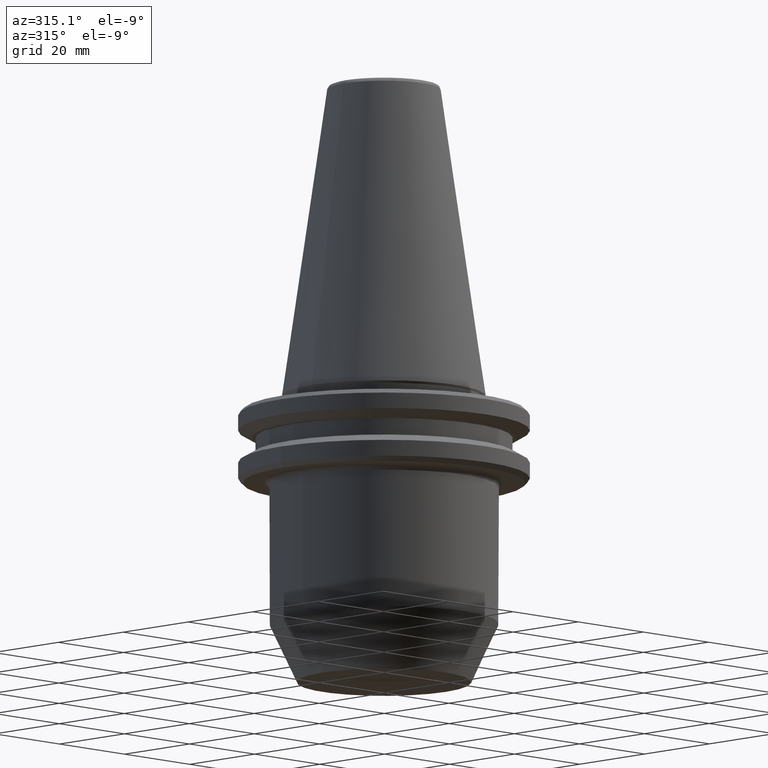
[diagram: clean part render]
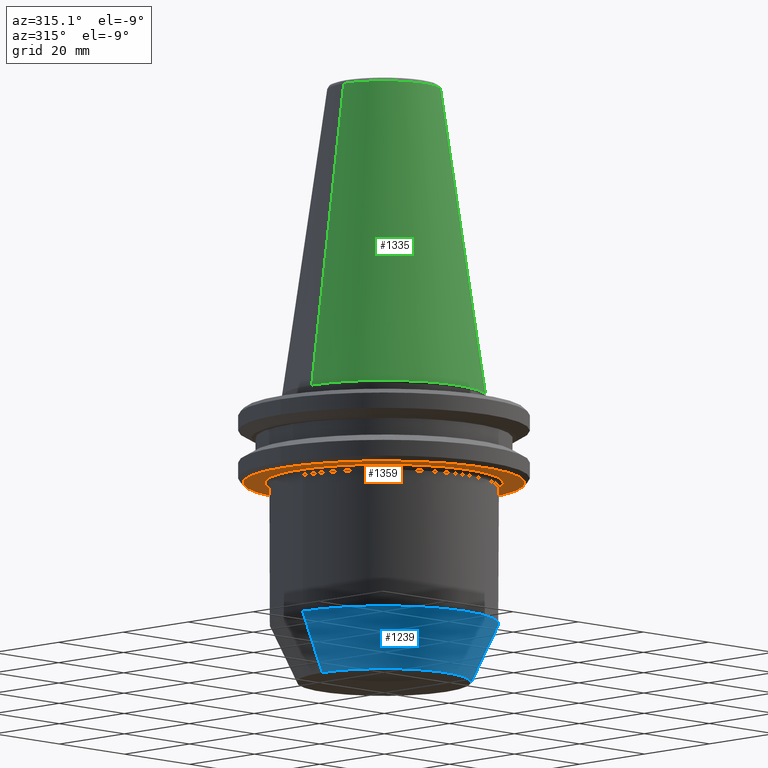
[diagram: same view with three faces highlighted in distinct colors, each labeled with its STEP entity id]
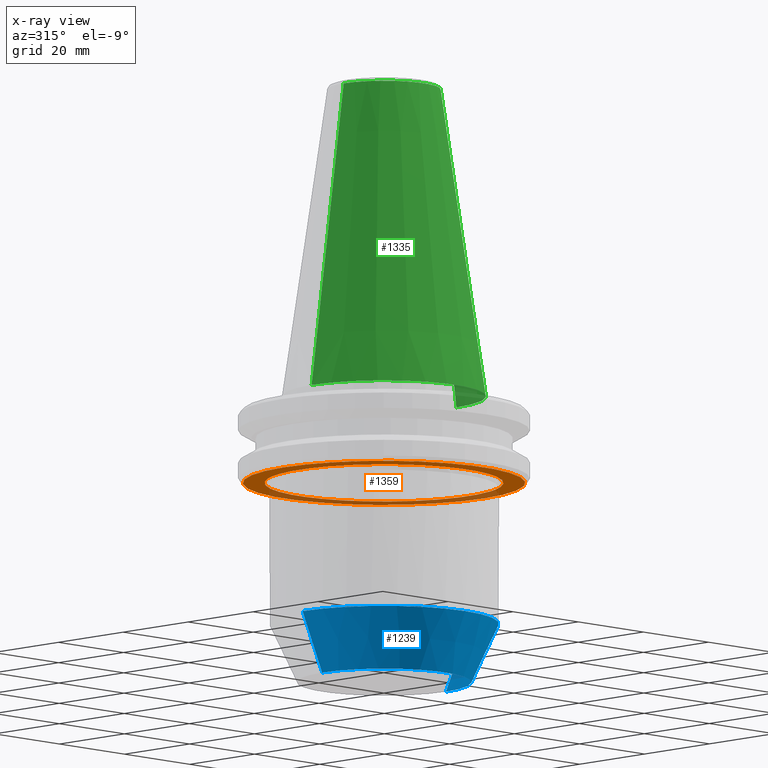
[diagram: x-ray of the same camera — body ghosted, the three highlighted faces saturated]
A machine part, auxiliary view with three faces highlighted in distinct colors.
The next image is the same camera in x-ray (body ghosted, the three faces saturated) — at least one of them is partly hidden behind the body in this view.
Their STEP definitions:

[orange] entity #1359 — the highlighted planar face has unit normal (0, 0, -1).
#2 = CARTESIAN_POINT ( 'NONE',  ( 21.08986678564064800, -15.20589655215031600, -19.10000000000000100 ) ) ;
#3 = VERTEX_POINT ( 'NONE', #1110 ) ;
#4 = CARTESIAN_POINT ( 'NONE',  ( 21.06357977021266900, -15.24229216683390600, -19.10000000000000500 ) ) ;
#5 = CARTESIAN_POINT ( 'NONE',  ( 21.01217869184344200, -15.31307514466165100, -19.10000000000000500 ) ) ;
#8 = CARTESIAN_POINT ( 'NONE',  ( 20.93482601209489900, -15.41903522698955700, -19.10000000000000100 ) ) ;
#10 = CARTESIAN_POINT ( 'NONE',  ( 20.75257899065204400, -15.66477472819203400, -19.10000000000000900 ) ) ;
#11 = CARTESIAN_POINT ( 'NONE',  ( 20.38105520631459200, -16.15025096701302200, -19.10000000000000500 ) ) ;
#12 = CARTESIAN_POINT ( 'NONE',  ( 19.60988867183271400, -17.09719239031935300, -19.10000000000000500 ) ) ;
#15 = CARTESIAN_POINT ( 'NONE',  ( 18.90068484375061100, -17.86769466000643900, -19.10000000000000500 ) ) ;
#18 = CARTESIAN_POINT ( 'NONE',  ( 18.34468000199737500, -18.42499045855544200, -19.10000000000000500 ) ) ;
#24 = CARTESIAN_POINT ( 'NONE',  ( 18.28089176897799100, -18.48828909787250700, -19.10000000000000500 ) ) ;
#26 = CARTESIAN_POINT ( 'NONE',  ( 18.15444972419174300, -18.61247392118095700, -19.10000000000000100 ) ) ;
#29 = CARTESIAN_POINT ( 'NONE',  ( 17.96391116099587700, -18.79771558474064700, -19.10000000000000500 ) ) ;
#32 = CARTESIAN_POINT ( 'NONE',  ( 17.51319270809000300, -19.22269713322589300, -19.10000000000000500 ) ) ;
#33 = CARTESIAN_POINT ( 'NONE',  ( 16.58724191381627100, -20.04366423091353200, -19.10000000000000500 ) ) ;
#36 = CARTESIAN_POINT ( 'NONE',  ( 15.75154599564680100, -20.69764288730368000, -19.10000000000001200 ) ) ;
#40 = CARTESIAN_POINT ( 'NONE',  ( 14.02412241425182900, -21.93932363029458800, -19.09999999999999800 ) ) ;
#44 = CARTESIAN_POINT ( 'NONE',  ( -18.99261454395822600, -17.75636746634904400, -19.10000000000000500 ) ) ;
#45 = DIRECTION ( 'NONE',  ( 0.0000000000000000000, 0.0000000000000000000, -1.000000000000000000 ) ) ;
#46 = CARTESIAN_POINT ( 'NONE',  ( -19.17139524099740200, -17.56451807996877100, -19.09999999999999800 ) ) ;
#48 = CARTESIAN_POINT ( 'NONE',  ( -19.58137120720936900, -17.11104614209958200, -19.10000000000000500 ) ) ;
#49 = DIRECTION ( 'NONE',  ( -0.0000000000000000000, -0.0000000000000000000, -1.000000000000000000 ) ) ;
#52 = CARTESIAN_POINT ( 'NONE',  ( -20.37260716544883000, -16.18080878776686800, -19.10000000000000900 ) ) ;
#53 = CARTESIAN_POINT ( 'NONE',  ( -21.00158203105213100, -15.34353080646283700, -19.09999999999999800 ) ) ;
#57 = CARTESIAN_POINT ( 'NONE',  ( -21.44869948809650500, -14.69560648168966900, -19.10000000000000500 ) ) ;
#58 = CARTESIAN_POINT ( 'NONE',  ( -21.49550636322783200, -14.62704469490636000, -19.10000000000001200 ) ) ;
#64 = CARTESIAN_POINT ( 'NONE',  ( -21.59090650262529500, -14.48586589484176400, -19.10000000000000500 ) ) ;
#65 = CARTESIAN_POINT ( 'NONE',  ( -21.73292025853827500, -14.27347227310506200, -19.10000000000000500 ) ) ;
#93 = CARTESIAN_POINT ( 'NONE',  ( -24.87081751016880900, -7.579078860645310600, -19.10000000000006200 ) ) ;
#94 = CARTESIAN_POINT ( 'NONE',  ( -24.67946047880618500, -8.207018732206732300, -19.10000000000000900 ) ) ;
#98 = CARTESIAN_POINT ( 'NONE',  ( -24.35774771690617500, -9.135490331354942500, -19.10000000000000500 ) ) ;
#100 = CARTESIAN_POINT ( 'NONE',  ( 21.31193190923805100, 14.89325728726105800, -19.09999999999999800 ) ) ;
#106 = CARTESIAN_POINT ( 'NONE',  ( 13.71377673508790800, 22.10921522283393200, -19.10000000000000500 ) ) ;
#109 = EDGE_CURVE ( 'NONE', #992, #3, #1176, .T. ) ;
#111 = CARTESIAN_POINT ( 'NONE',  ( 7.693485881876853200, 24.83570103653474000, -19.10000000000000500 ) ) ;
#113 = CARTESIAN_POINT ( 'NONE',  ( -23.56816878157279800, -10.97967670554026800, -19.10000000000000900 ) ) ;
#114 = CARTESIAN_POINT ( 'NONE',  ( -3.024413081520043200, 25.82720100315830400, -19.10000000000000900 ) ) ;
#117 = CARTESIAN_POINT ( 'NONE',  ( -23.68855141308448600, -10.71916111727049200, -19.10000000000000900 ) ) ;
#119 = CARTESIAN_POINT ( 'NONE',  ( -8.787973090625419200, 24.47982668187035300, -19.10000000000000900 ) ) ;
#121 = CARTESIAN_POINT ( 'NONE',  ( -23.92173103535806100, -10.19519033268852900, -19.10000000000000500 ) ) ;
#124 = CARTESIAN_POINT ( 'NONE',  ( 9.309139455098502900, -24.29406549653491600, -19.10000000000000500 ) ) ;
#126 = CARTESIAN_POINT ( 'NONE',  ( -18.50462024641615600, 18.26437132208178200, -19.10000000000000500 ) ) ;
#127 = CARTESIAN_POINT ( 'NONE',  ( 8.321525427968865100, -24.64229291214120100, -19.10000000000000100 ) ) ;
#128 = CARTESIAN_POINT ( 'NONE',  ( 7.569170516763039200, -24.87398675893136600, -19.10000000000000500 ) ) ;
#130 = CARTESIAN_POINT ( 'NONE',  ( 11.22663073801722800, -23.45145528720430400, -19.10000000000000100 ) ) ;
#131 = CARTESIAN_POINT ( 'NONE',  ( -22.90905400916465600, 12.30373866754533900, -19.10000000000000100 ) ) ;
#132 = CARTESIAN_POINT ( 'NONE',  ( 10.98991607323609700, -23.56430426665612300, -19.10000000000000500 ) ) ;
#135 = CARTESIAN_POINT ( 'NONE',  ( 10.43418557474635300, -23.81902117686026400, -19.10000000000001200 ) ) ;
#136 = EDGE_CURVE ( 'NONE', #290, #1049, #369, .T. ) ;
#137 = CARTESIAN_POINT ( 'NONE',  ( 12.81200440084446700, -22.66860169791274900, -19.10000000000000500 ) ) ;
#139 = CARTESIAN_POINT ( 'NONE',  ( 11.46168780979420800, -23.33746934526750700, -19.10000000000000500 ) ) ;
#146 = CARTESIAN_POINT ( 'NONE',  ( -18.87274369892771000, -17.88371245063601800, -19.10000000000000100 ) ) ;
#147 = CARTESIAN_POINT ( 'NONE',  ( -15.00607522852591900, -21.24432462045455900, -19.10000000000000500 ) ) ;
#148 = CARTESIAN_POINT ( 'NONE',  ( -14.13114984464067100, -21.84480886108765300, -19.10000000000000500 ) ) ;
#149 = CARTESIAN_POINT ( 'NONE',  ( -13.06982959351578100, -22.48118231550234500, -19.10000000000000900 ) ) ;
#151 = CARTESIAN_POINT ( 'NONE',  ( -12.52902597547198700, -22.78332116946204500, -19.10000000000000500 ) ) ;
#153 = B_SPLINE_CURVE_WITH_KNOTS ( 'NONE', 3,
 ( #93, #94, #98, #121, #117, #113, #217, #214, #212, #222, #221, #218, #65, #64, #58, #57, #53, #52, #48, #46, #44, #146, #238, #230, #227, #147, #148, #149, #151, #154, #157, #252, #249, #241, #162, #256, #258, #261, #167, #169, #279, #277, #275, #271, #269, #263, #289, #286, #283, #295, #294, #291, #308, #307, #300, #322, #314, #309, #604, #613, #743, #633, #630, #717, #128, #127, #124, #135, #132, #130, #172, #139, #137, #40, #36, #33, #32, #29, #26, #24, #18, #15, #12, #11, #10, #8, #5, #4, #2, #1143, #646, #956, #416, #236, #701, #273, #1240, #1092, #1036, #1502 ),
 .UNSPECIFIED., .F., .F.,
 ( 4, 1, 1, 1, 1, 2, 2, 1, 1, 1, 2, 2, 1, 1, 1, 2, 2, 2, 1, 1, 1, 2, 2, 1, 1, 1, 1, 2, 2, 1, 1, 1, 1, 2, 2, 2, 1, 1, 1, 1, 2, 2, 1, 1, 1, 2, 2, 1, 1, 1, 2, 2, 2, 1, 1, 1, 2, 2, 1, 1, 1, 1, 2, 2, 1, 1, 1, 1, 2, 2, 4 ),
 ( 0.0000000000000000000, 0.03124999999999878600, 0.04687499999999818200, 0.05468749999999789100, 0.05859374999999766900, 0.06054687499999759200, 0.06249999999999751600, 0.09374999999999612800, 0.1093749999999955000, 0.1171874999999951600, 0.1210937499999949800, 0.1249999999999948000, 0.1562499999999931200, 0.1718749999999922300, 0.1796874999999917300, 0.1835937499999915900, 0.1874999999999914500, 0.2499999999999897900, 0.2812499999999890100, 0.2968749999999885600, 0.3046874999999884000, 0.3085937499999882300, 0.3124999999999880700, 0.3437499999999866200, 0.3593749999999859600, 0.3671874999999855700, 0.3710937499999852900, 0.3730468749999852300, 0.3749999999999851800, 0.4062499999999849600, 0.4218749999999848500, 0.4296874999999847300, 0.4335937499999846800, 0.4355468749999846800, 0.4374999999999846800, 0.4999999999999850100, 0.5312499999999852300, 0.5468749999999853500, 0.5546874999999853500, 0.5585937499999853500, 0.5605468749999854600, 0.5624999999999854600, 0.5937499999999860100, 0.6093749999999863400, 0.6171874999999864600, 0.6210937499999865700, 0.6249999999999865700, 0.6562499999999870100, 0.6718749999999872300, 0.6796874999999873400, 0.6835937499999874500, 0.6874999999999874500, 0.7499999999999896700, 0.7812499999999909000, 0.7968749999999913400, 0.8046874999999915600, 0.8085937499999917800, 0.8124999999999920100, 0.8437499999999927800, 0.8593749999999931200, 0.8671874999999932300, 0.8710937499999933400, 0.8730468749999933400, 0.8749999999999934500, 0.9062499999999956700, 0.9218749999999966700, 0.9296874999999973400, 0.9335937499999975600, 0.9355468749999977800, 0.9374999999999978900, 1.000000000000000000 ),
 .UNSPECIFIED. ) ;
#154 = CARTESIAN_POINT ( 'NONE',  ( -12.29507939077864100, -22.90937041974884600, -19.10000000000000100 ) ) ;
#157 = CARTESIAN_POINT ( 'NONE',  ( -12.13863197753158500, -22.99263906883302500, -19.10000000000000100 ) ) ;
#162 = CARTESIAN_POINT ( 'NONE',  ( -9.277455411015266100, -24.29293804208997500, -19.10000000000000500 ) ) ;
#167 = CARTESIAN_POINT ( 'NONE',  ( -8.206333344085546600, -24.67099422968122000, -19.10000000000000100 ) ) ;
#169 = CARTESIAN_POINT ( 'NONE',  ( -8.163719542336055600, -24.68512617397029300, -19.09999999999999800 ) ) ;
#172 = CARTESIAN_POINT ( 'NONE',  ( 11.38411705923635800, -23.37540383659991900, -19.10000000000000500 ) ) ;
#212 = CARTESIAN_POINT ( 'NONE',  ( -23.46367537207778000, -11.20079061624733700, -19.10000000000000100 ) ) ;
#214 = CARTESIAN_POINT ( 'NONE',  ( -23.48064599843652500, -11.16516434791484600, -19.10000000000000100 ) ) ;
#217 = CARTESIAN_POINT ( 'NONE',  ( -23.51576347798745200, -11.09101128536561200, -19.10000000000000100 ) ) ;
#218 = CARTESIAN_POINT ( 'NONE',  ( -22.05668051671936100, -13.77350920424072600, -19.10000000000000500 ) ) ;
#221 = CARTESIAN_POINT ( 'NONE',  ( -22.67378034395125800, -12.75607126059725800, -19.10000000000000500 ) ) ;
#222 = CARTESIAN_POINT ( 'NONE',  ( -23.15057330021246800, -11.85396135590606000, -19.10000000000000100 ) ) ;
#227 = CARTESIAN_POINT ( 'NONE',  ( -16.70955574495307900, -19.96999443291344200, -19.10000000000000500 ) ) ;
#230 = CARTESIAN_POINT ( 'NONE',  ( -17.76944083940506400, -19.03312722494909100, -19.10000000000000500 ) ) ;
#232 = CARTESIAN_POINT ( 'NONE',  ( 24.17987589767861300, 9.596387810395482300, -19.10000000000000500 ) ) ;
#236 = CARTESIAN_POINT ( 'NONE',  ( 23.09226670845448800, -11.94822560283492600, -19.10000000000000500 ) ) ;
#237 = CARTESIAN_POINT ( 'NONE',  ( 21.16576763980792500, 15.10025959422688200, -19.10000000000000100 ) ) ;
#238 = CARTESIAN_POINT ( 'NONE',  ( -18.81324768613971400, -17.94629416872470200, -19.10000000000000500 ) ) ;
#239 = CARTESIAN_POINT ( 'NONE',  ( 12.09411975201280000, 23.01713454861715000, -19.10000000000000500 ) ) ;
#241 = CARTESIAN_POINT ( 'NONE',  ( -10.41240086286569200, -23.84205590179272200, -19.10000000000000900 ) ) ;
#243 = CARTESIAN_POINT ( 'NONE',  ( 6.015060941970268100, 25.31080303800463600, -19.10000000000000500 ) ) ;
#247 = CARTESIAN_POINT ( 'NONE',  ( -3.876893395368816700, 25.70956239486193700, -19.10000000000000500 ) ) ;
#249 = CARTESIAN_POINT ( 'NONE',  ( -11.36044160209599800, -23.39723844028214500, -19.10000000000000500 ) ) ;
#252 = CARTESIAN_POINT ( 'NONE',  ( -12.05908733248370100, -23.03445181637846100, -19.10000000000000500 ) ) ;
#254 = CARTESIAN_POINT ( 'NONE',  ( -10.88461865241911800, 23.61658474934612400, -19.10000000000000500 ) ) ;
#256 = CARTESIAN_POINT ( 'NONE',  ( -8.702758204402957900, -24.50136122103900500, -19.10000000000000500 ) ) ;
#258 = CARTESIAN_POINT ( 'NONE',  ( -8.413603480925019100, -24.60131833771361400, -19.10000000000000500 ) ) ;
#259 = CARTESIAN_POINT ( 'NONE',  ( -18.69125597911880000, 18.07330926246293900, -19.10000000000000500 ) ) ;
#261 = CARTESIAN_POINT ( 'NONE',  ( -8.289293002254817500, -24.64324542925988500, -19.10000000000000100 ) ) ;
#263 = CARTESIAN_POINT ( 'NONE',  ( -4.328805773996675700, -25.63714608363350300, -19.10000000000000500 ) ) ;
#264 = DIRECTION ( 'NONE',  ( -0.0000000000000000000, -0.0000000000000000000, 1.000000000000000000 ) ) ;
#268 = CARTESIAN_POINT ( 'NONE',  ( -23.31499519051407900, 11.50755734536840100, -19.10000000000000900 ) ) ;
#269 = CARTESIAN_POINT ( 'NONE',  ( -4.454820050719939100, -25.61576575287729400, -19.10000000000000500 ) ) ;
#271 = CARTESIAN_POINT ( 'NONE',  ( -4.748326678287503100, -25.56374864306443600, -19.10000000000000500 ) ) ;
#273 = CARTESIAN_POINT ( 'NONE',  ( 23.18920190387675700, -11.75851531219646300, -19.09999999999999800 ) ) ;
#275 = CARTESIAN_POINT ( 'NONE',  ( -5.333233194275766000, -25.45119573791188800, -19.10000000000000900 ) ) ;
#277 = CARTESIAN_POINT ( 'NONE',  ( -6.494619269664811500, -25.19201518549941100, -19.10000000000000900 ) ) ;
#279 = CARTESIAN_POINT ( 'NONE',  ( -7.475646837276887200, -24.91144658267609200, -19.10000000000000100 ) ) ;
#283 = CARTESIAN_POINT ( 'NONE',  ( -2.864806780242861200, -25.87503538772877200, -19.10000000000000900 ) ) ;
#286 = CARTESIAN_POINT ( 'NONE',  ( -4.201105064161559700, -25.65837792313284300, -19.10000000000000500 ) ) ;
#289 = CARTESIAN_POINT ( 'NONE',  ( -4.244746095725289200, -25.65119681162508800, -19.10000000000000500 ) ) ;
#290 = VERTEX_POINT ( 'NONE', #768 ) ;
#291 = CARTESIAN_POINT ( 'NONE',  ( 1.391627470223698400, -25.97731962421324100, -19.10000000000000900 ) ) ;
#294 = CARTESIAN_POINT ( 'NONE',  ( 0.4094565652388628100, -26.00507345475256600, -19.10000000000001600 ) ) ;
#295 = CARTESIAN_POINT ( 'NONE',  ( -1.559542358538994700, -25.98633678268795700, -19.10000000000000900 ) ) ;
#300 = CARTESIAN_POINT ( 'NONE',  ( 3.387979061002612400, -25.77854725962171400, -19.10000000000000900 ) ) ;
#307 = CARTESIAN_POINT ( 'NONE',  ( 3.103295348428391200, -25.81506378564376900, -19.10000000000000500 ) ) ;
#308 = CARTESIAN_POINT ( 'NONE',  ( 2.533418551457181400, -25.87997636375031300, -19.10000000000000500 ) ) ;
#309 = CARTESIAN_POINT ( 'NONE',  ( 3.630311962267365200, -25.74534147087361500, -19.10000000000000500 ) ) ;
#314 = CARTESIAN_POINT ( 'NONE',  ( 3.591221482829588800, -25.75082059749956900, -19.10000000000000500 ) ) ;
#322 = CARTESIAN_POINT ( 'NONE',  ( 3.509931790839122500, -25.76202726911896000, -19.10000000000000100 ) ) ;
#362 = CARTESIAN_POINT ( 'NONE',  ( 23.48072692971287600, 11.16706523490091600, -19.10000000000000900 ) ) ;
#366 = CARTESIAN_POINT ( 'NONE',  ( 20.06166590491628600, 16.56475948703174000, -19.10000000000001200 ) ) ;
#369 =( BOUNDED_CURVE ( )  B_SPLINE_CURVE ( 3, ( #1184, #749, #1167, #653 ),
 .UNSPECIFIED., .F., .T. ) 
 B_SPLINE_CURVE_WITH_KNOTS ( ( 4, 4 ),
 ( 0.0000000000000000000, 1.000000000000000000 ),
 .UNSPECIFIED. ) 
 CURVE ( )  GEOMETRIC_REPRESENTATION_ITEM ( )  RATIONAL_B_SPLINE_CURVE ( ( 1.000000000000000000, 0.9710466028248412300, 0.9710466028248412300, 1.000000000000000000 ) ) 
 REPRESENTATION_ITEM ( '' )  );
#371 = CARTESIAN_POINT ( 'NONE',  ( 11.69982127879964800, 23.21900126361637700, -19.10000000000000100 ) ) ;
#377 = CARTESIAN_POINT ( 'NONE',  ( 4.262024157727580600, 25.64930800252978600, -19.10000000000000900 ) ) ;
#379 = CARTESIAN_POINT ( 'NONE',  ( -4.079572649399104900, 25.67798123259734300, -19.10000000000000100 ) ) ;
#383 = ORIENTED_EDGE ( 'NONE', *, *, #1291, .T. ) ;
#384 = CARTESIAN_POINT ( 'NONE',  ( -11.66994097967679200, 23.23403689302101300, -19.10000000000000500 ) ) ;
#386 = ORIENTED_EDGE ( 'NONE', *, *, #1260, .T. ) ;
#390 = CARTESIAN_POINT ( 'NONE',  ( -19.93102210410323100, 16.72172476866129300, -19.10000000000000900 ) ) ;
#398 = CARTESIAN_POINT ( 'NONE',  ( -23.40831037709759600, 11.31604049901671900, -19.10000000000000100 ) ) ;
#416 = CARTESIAN_POINT ( 'NONE',  ( 22.95443483083144200, -12.21252523136457500, -19.10000000000000500 ) ) ;
#427 = CARTESIAN_POINT ( 'NONE',  ( -30.75000000000049700, 3.827021247335512800E-015, -19.10000000000006200 ) ) ;
#454 = CARTESIAN_POINT ( 'NONE',  ( -24.87081751016881600, 7.579078860645282100, -19.10000000000006200 ) ) ;
#488 = CARTESIAN_POINT ( 'NONE',  ( 23.30090885195205500, 11.53556717104765600, -19.10000000000000500 ) ) ;
#495 = CARTESIAN_POINT ( 'NONE',  ( 18.83439444525151500, 17.92540869126046500, -19.10000000000000500 ) ) ;
#498 = CARTESIAN_POINT ( 'NONE',  ( 10.91408803096724100, 23.60875012528328700, -19.10000000000000500 ) ) ;
#502 = CARTESIAN_POINT ( 'NONE',  ( 3.841185110489998800, 25.71472565845437000, -19.10000000000000500 ) ) ;
#508 = CARTESIAN_POINT ( 'NONE',  ( -4.833557470047196600, 25.55586363517212000, -19.10000000000000100 ) ) ;
#514 = CARTESIAN_POINT ( 'NONE',  ( -11.90279111446720100, 23.11560785650694800, -19.10000000000000500 ) ) ;
#515 = CARTESIAN_POINT ( 'NONE',  ( -21.04630528232787500, 15.26786612501470900, -19.10000000000000900 ) ) ;
#521 = CARTESIAN_POINT ( 'NONE',  ( -24.01281806260950800, 10.05532717132180700, -19.10000000000000500 ) ) ;
#544 = B_SPLINE_CURVE_WITH_KNOTS ( 'NONE', 3,
 ( #1504, #719, #232, #1061, #362, #1177, #488, #1293, #605, #1400, #723, #1511, #843, #100, #953, #237, #1066, #366, #1181, #495, #1296, #610, #1406, #728, #1512, #847, #106, #958, #239, #1070, #371, #1185, #498, #1300, #615, #1409, #731, #1519, #850, #111, #963, #243, #1074, #377, #1191, #502, #1302, #624, #1413, #733, #1525, #855, #114, #968, #247, #1079, #379, #1199, #508, #1306, #628, #1420, #737, #1531, #861, #119, #971, #254, #1085, #384, #1201, #514, #1312, #632, #1424, #742, #1533, #865, #126, #977, #259, #1091, #390, #1207, #515, #1323, #636, #1428, #747, #1541, #868, #131, #982, #268, #1097, #398, #1213, #521, #1325, #643 ),
 .UNSPECIFIED., .F., .F.,
 ( 4, 1, 1, 1, 1, 2, 2, 1, 1, 1, 2, 2, 1, 1, 1, 2, 2, 2, 1, 1, 1, 2, 2, 1, 1, 1, 1, 2, 2, 1, 1, 1, 1, 2, 2, 2, 1, 1, 1, 1, 2, 2, 1, 1, 1, 2, 2, 1, 1, 1, 2, 2, 2, 1, 1, 1, 2, 2, 1, 1, 1, 1, 2, 2, 1, 1, 1, 1, 2, 2, 4 ),
 ( 0.0000000000000000000, 0.03124999999999927100, 0.04687499999999890400, 0.05468749999999868200, 0.05859374999999857800, 0.06054687499999852900, 0.06249999999999847300, 0.09374999999999773800, 0.1093749999999974300, 0.1171874999999972900, 0.1210937499999972200, 0.1249999999999971400, 0.1562499999999971400, 0.1718749999999971700, 0.1796874999999972200, 0.1835937499999972200, 0.1874999999999972000, 0.2499999999999965000, 0.2812499999999961700, 0.2968749999999960000, 0.3046874999999959500, 0.3085937499999958900, 0.3124999999999958900, 0.3437499999999955000, 0.3593749999999953400, 0.3671874999999952800, 0.3710937499999951700, 0.3730468749999951700, 0.3749999999999951700, 0.4062499999999955600, 0.4218749999999958400, 0.4296874999999959500, 0.4335937499999959500, 0.4355468749999959500, 0.4374999999999959500, 0.4999999999999970000, 0.5312499999999974500, 0.5468749999999977800, 0.5546874999999980000, 0.5585937499999980000, 0.5605468749999980000, 0.5624999999999981100, 0.5937499999999984500, 0.6093749999999986700, 0.6171874999999987800, 0.6210937499999988900, 0.6249999999999988900, 0.6562499999999991100, 0.6718749999999992200, 0.6796874999999992200, 0.6835937499999992200, 0.6874999999999993300, 0.7499999999999998900, 0.7812500000000002200, 0.7968750000000004400, 0.8046875000000004400, 0.8085937500000004400, 0.8125000000000004400, 0.8437500000000001100, 0.8593750000000000000, 0.8671874999999998900, 0.8710937499999998900, 0.8730468750000000000, 0.8750000000000000000, 0.9062499999999991100, 0.9218749999999985600, 0.9296874999999983300, 0.9335937499999982200, 0.9355468749999982200, 0.9374999999999981100, 1.000000000000000000 ),
 .UNSPECIFIED. ) ;
#604 = CARTESIAN_POINT ( 'NONE',  ( 4.347389314199229900, -25.64304291823708200, -19.10000000000000500 ) ) ;
#605 = CARTESIAN_POINT ( 'NONE',  ( 23.24674546890363700, 11.64433757236813200, -19.10000000000000500 ) ) ;
#610 = CARTESIAN_POINT ( 'NONE',  ( 18.52973537065677000, 18.23887422062748300, -19.10000000000000900 ) ) ;
#613 = CARTESIAN_POINT ( 'NONE',  ( 5.351095628112692500, -25.45944706135241000, -19.09999999999999400 ) ) ;
#615 = CARTESIAN_POINT ( 'NONE',  ( 8.814468432482282600, 24.46473306359758800, -19.10000000000000500 ) ) ;
#624 = CARTESIAN_POINT ( 'NONE',  ( 3.713104242667133500, 25.73352867932303300, -19.10000000000000100 ) ) ;
#628 = CARTESIAN_POINT ( 'NONE',  ( -6.983892504680008000, 25.04859191050261900, -19.10000000000000900 ) ) ;
#630 = CARTESIAN_POINT ( 'NONE',  ( 7.326385013163037900, -24.94657565613503900, -19.10000000000000900 ) ) ;
#632 = CARTESIAN_POINT ( 'NONE',  ( -14.43821338271098900, 21.66905455158838500, -19.10000000000001200 ) ) ;
#633 = CARTESIAN_POINT ( 'NONE',  ( 7.081127242233479900, -25.01818280119997000, -19.10000000000000900 ) ) ;
#636 = CARTESIAN_POINT ( 'NONE',  ( -21.29917952524332100, 14.91130025569524300, -19.10000000000000100 ) ) ;
#643 = CARTESIAN_POINT ( 'NONE',  ( -24.87081751016881600, 7.579078860645282100, -19.10000000000006200 ) ) ;
#646 = CARTESIAN_POINT ( 'NONE',  ( 22.07500275959962700, -13.76633436060338400, -19.10000000000000500 ) ) ;
#653 = CARTESIAN_POINT ( 'NONE',  ( -24.87081751016881600, 7.579078860645282100, -19.10000000000006200 ) ) ;
#701 = CARTESIAN_POINT ( 'NONE',  ( 23.15053484775988200, -11.83446471139458800, -19.10000000000000500 ) ) ;
#704 = ORIENTED_EDGE ( 'NONE', *, *, #109, .T. ) ;
#717 = CARTESIAN_POINT ( 'NONE',  ( 7.489710231638334800, -24.89802142669987700, -19.10000000000000500 ) ) ;
#719 = CARTESIAN_POINT ( 'NONE',  ( 24.51916198707672500, 8.674192841251594300, -19.10000000000000100 ) ) ;
#723 = CARTESIAN_POINT ( 'NONE',  ( 22.42745865943133100, 13.18433794966514000, -19.10000000000000500 ) ) ;
#727 = EDGE_LOOP ( 'NONE', ( #869, #1360, #383, #1458 ) ) ;
#728 = CARTESIAN_POINT ( 'NONE',  ( 17.40480448883396700, 19.36713041242116200, -19.10000000000000500 ) ) ;
#731 = CARTESIAN_POINT ( 'NONE',  ( 7.944916241886564200, 24.75665351773663000, -19.10000000000000500 ) ) ;
#733 = CARTESIAN_POINT ( 'NONE',  ( 1.065790042382649800, 26.01126608484435100, -19.10000000000000500 ) ) ;
#737 = CARTESIAN_POINT ( 'NONE',  ( -7.798790337815547400, 24.80295191293166800, -19.10000000000000900 ) ) ;
#742 = CARTESIAN_POINT ( 'NONE',  ( -16.96487281838793800, 19.72506426771161300, -19.10000000000000500 ) ) ;
#743 = CARTESIAN_POINT ( 'NONE',  ( 6.506969507548247700, -25.17669674607023800, -19.10000000000000500 ) ) ;
#747 = CARTESIAN_POINT ( 'NONE',  ( -21.37481832780473600, 14.80266572088002200, -19.10000000000000500 ) ) ;
#748 = EDGE_CURVE ( 'NONE', #290, #1150, #153, .T. ) ;
#749 = CARTESIAN_POINT ( 'NONE',  ( -26.38761699199821800, -2.601687306114602600, -19.10000000000000500 ) ) ;
#768 = CARTESIAN_POINT ( 'NONE',  ( -24.87081751016880900, -7.579078860645310600, -19.10000000000006200 ) ) ;
#775 = AXIS2_PLACEMENT_3D ( 'NONE', #788, #49, #904 ) ;
#788 = CARTESIAN_POINT ( 'NONE',  ( 0.0000000000000000000, 0.0000000000000000000, -19.10000000000006200 ) ) ;
#818 = CARTESIAN_POINT ( 'NONE',  ( 0.0000000000000000000, 0.0000000000000000000, -19.10000000000006200 ) ) ;
#822 = CIRCLE ( 'NONE', #846, 26.00000000000000700 ) ;
#832 = CARTESIAN_POINT ( 'NONE',  ( 24.72240886321554500, 8.050000000000000700, -19.10000000000006200 ) ) ;
#843 = CARTESIAN_POINT ( 'NONE',  ( 21.45795333507312100, 14.68359875388451900, -19.10000000000000500 ) ) ;
#844 = CARTESIAN_POINT ( 'NONE',  ( 24.72240886321557300, -8.050000000000000700, -19.10000000000006200 ) ) ;
#846 = AXIS2_PLACEMENT_3D ( 'NONE', #978, #264, #1094 ) ;
#847 = CARTESIAN_POINT ( 'NONE',  ( 14.59994733067662800, 21.52545377651681600, -19.10000000000000500 ) ) ;
#850 = CARTESIAN_POINT ( 'NONE',  ( 7.736360360007823900, 24.82238086113714500, -19.10000000000000500 ) ) ;
#855 = CARTESIAN_POINT ( 'NONE',  ( -1.884676400550171900, 25.94620890881312300, -19.10000000000000500 ) ) ;
#861 = CARTESIAN_POINT ( 'NONE',  ( -8.040153625670992500, 24.72576569635302200, -19.10000000000000100 ) ) ;
#865 = CARTESIAN_POINT ( 'NONE',  ( -18.31763371295803500, 18.45319784110708000, -19.10000000000000900 ) ) ;
#868 = CARTESIAN_POINT ( 'NONE',  ( -22.33243989929686500, 13.34465573585295300, -19.10000000000000500 ) ) ;
#869 = ORIENTED_EDGE ( 'NONE', *, *, #748, .T. ) ;
#878 = VERTEX_POINT ( 'NONE', #832 ) ;
#903 = DIRECTION ( 'NONE',  ( -1.000000000000000000, 0.0000000000000000000, -0.0000000000000000000 ) ) ;
#904 = DIRECTION ( 'NONE',  ( -1.000000000000000000, 0.0000000000000000000, 0.0000000000000000000 ) ) ;
#953 = CARTESIAN_POINT ( 'NONE',  ( 21.21386803818492000, 15.03259901603476200, -19.10000000000000100 ) ) ;
#956 = CARTESIAN_POINT ( 'NONE',  ( 22.67127953194341600, -12.73655468243256900, -19.10000000000000500 ) ) ;
#958 = CARTESIAN_POINT ( 'NONE',  ( 12.64056335978020400, 22.72531984052482200, -19.10000000000000900 ) ) ;
#959 = CIRCLE ( 'NONE', #775, 30.75000000000049700 ) ;
#963 = CARTESIAN_POINT ( 'NONE',  ( 7.001239507219423800, 25.04891438445155000, -19.10000000000000500 ) ) ;
#968 = CARTESIAN_POINT ( 'NONE',  ( -3.592954452360042500, 25.75147837658503000, -19.10000000000000500 ) ) ;
#971 = CARTESIAN_POINT ( 'NONE',  ( -9.768796319566876100, 24.11290762664043500, -19.10000000000000900 ) ) ;
#977 = CARTESIAN_POINT ( 'NONE',  ( -18.62868126653975400, 18.13780780318638400, -19.10000000000000500 ) ) ;
#978 = CARTESIAN_POINT ( 'NONE',  ( 0.0000000000000000000, 0.0000000000000000000, -19.10000000000000500 ) ) ;
#982 = CARTESIAN_POINT ( 'NONE',  ( -23.18220712064060500, 11.77442669285083500, -19.10000000000000900 ) ) ;
#983 = EDGE_CURVE ( 'NONE', #1150, #878, #822, .T. ) ;
#992 = VERTEX_POINT ( 'NONE', #427 ) ;
#1036 = CARTESIAN_POINT ( 'NONE',  ( 24.31581022605418600, -9.298707795171454300, -19.10000000000000900 ) ) ;
#1049 = VERTEX_POINT ( 'NONE', #454 ) ;
#1061 = CARTESIAN_POINT ( 'NONE',  ( 23.72381452013185000, 10.64761692877971200, -19.10000000000000100 ) ) ;
#1066 = CARTESIAN_POINT ( 'NONE',  ( 20.70642695902089500, 15.73957648751714600, -19.10000000000000100 ) ) ;
#1070 = CARTESIAN_POINT ( 'NONE',  ( 11.85782172294529600, 23.13871850906679100, -19.10000000000000900 ) ) ;
#1074 = CARTESIAN_POINT ( 'NONE',  ( 4.848962542480540700, 25.54788255523024200, -19.10000000000000500 ) ) ;
#1079 = CARTESIAN_POINT ( 'NONE',  ( -3.998510426141597100, 25.69072954517280000, -19.10000000000000900 ) ) ;
#1085 = CARTESIAN_POINT ( 'NONE',  ( -11.43541196028371600, 23.35136064915076700, -19.10000000000000100 ) ) ;
#1091 = CARTESIAN_POINT ( 'NONE',  ( -19.23657771756521500, 17.50555562505511300, -19.10000000000000100 ) ) ;
#1092 = CARTESIAN_POINT ( 'NONE',  ( 23.81754107327016400, -10.50950869705199500, -19.10000000000001200 ) ) ;
#1094 = DIRECTION ( 'NONE',  ( -1.000000000000000000, 1.776356839400250500E-015, 0.0000000000000000000 ) ) ;
#1097 = CARTESIAN_POINT ( 'NONE',  ( -23.37109254491746300, 11.39271047641839700, -19.10000000000000900 ) ) ;
#1110 = CARTESIAN_POINT ( 'NONE',  ( 30.75000000000049700, 0.0000000000000000000, -19.10000000000006200 ) ) ;
#1125 = PLANE ( 'NONE',  #1257 ) ;
#1143 = CARTESIAN_POINT ( 'NONE',  ( 21.51253779833169600, -14.61766684366662400, -19.10000000000000500 ) ) ;
#1150 = VERTEX_POINT ( 'NONE', #844 ) ;
#1163 = DIRECTION ( 'NONE',  ( -0.0000000000000000000, -0.0000000000000000000, -1.000000000000000000 ) ) ;
#1167 = CARTESIAN_POINT ( 'NONE',  ( -26.38761699199821800, 2.601687306114595500, -19.10000000000000500 ) ) ;
#1176 = CIRCLE ( 'NONE', #1445, 30.75000000000049700 ) ;
#1177 = CARTESIAN_POINT ( 'NONE',  ( 23.35541890909202000, 11.42524782469379100, -19.10000000000000100 ) ) ;
#1181 = CARTESIAN_POINT ( 'NONE',  ( 19.25290775228088000, 17.47980381793868400, -19.10000000000000500 ) ) ;
#1184 = CARTESIAN_POINT ( 'NONE',  ( -24.87081751016880900, -7.579078860645310600, -19.10000000000006200 ) ) ;
#1185 = CARTESIAN_POINT ( 'NONE',  ( 11.61949696831999600, 23.25929594757294100, -19.10000000000000100 ) ) ;
#1191 = CARTESIAN_POINT ( 'NONE',  ( 3.967582669099077200, 25.69574214835124000, -19.10000000000000500 ) ) ;
#1199 = CARTESIAN_POINT ( 'NONE',  ( -4.118552033440281900, 25.67176077995259600, -19.10000000000000100 ) ) ;
#1201 = CARTESIAN_POINT ( 'NONE',  ( -11.82595471362638900, 23.15500854790840200, -19.10000000000001200 ) ) ;
#1207 = CARTESIAN_POINT ( 'NONE',  ( -20.68406750846411400, 15.76030992479761000, -19.10000000000000500 ) ) ;
#1213 = CARTESIAN_POINT ( 'NONE',  ( -23.42752133878628100, 11.27620883862316800, -19.10000000000000500 ) ) ;
#1225 = DIRECTION ( 'NONE',  ( -1.000000000000000000, 0.0000000000000000000, 0.0000000000000000000 ) ) ;
#1240 = CARTESIAN_POINT ( 'NONE',  ( 23.20916579022585000, -11.71905564340994000, -19.10000000000000100 ) ) ;
#1257 = AXIS2_PLACEMENT_3D ( 'NONE', #1346, #45, #903 ) ;
#1260 = EDGE_CURVE ( 'NONE', #3, #992, #959, .T. ) ;
#1291 = EDGE_CURVE ( 'NONE', #878, #1049, #544, .T. ) ;
#1293 = CARTESIAN_POINT ( 'NONE',  ( 23.26438956502963200, 11.60903999417557500, -19.10000000000000100 ) ) ;
#1296 = CARTESIAN_POINT ( 'NONE',  ( 18.65200283565786100, 18.11382850294158700, -19.10000000000000100 ) ) ;
#1300 = CARTESIAN_POINT ( 'NONE',  ( 9.957771319739656200, 24.03548442816969600, -19.10000000000001200 ) ) ;
#1302 = CARTESIAN_POINT ( 'NONE',  ( 3.756873771595754500, 25.72717759005509900, -19.10000000000000100 ) ) ;
#1306 = CARTESIAN_POINT ( 'NONE',  ( -5.833596377575325700, 25.35324086570786100, -19.10000000000000100 ) ) ;
#1308 = EDGE_LOOP ( 'NONE', ( #386, #704 ) ) ;
#1312 = CARTESIAN_POINT ( 'NONE',  ( -13.24016266334891900, 22.42121879725164400, -19.10000000000000500 ) ) ;
#1323 = CARTESIAN_POINT ( 'NONE',  ( -21.22385293718056300, 15.01871013066049400, -19.10000000000000500 ) ) ;
#1325 = CARTESIAN_POINT ( 'NONE',  ( -24.48800469828426100, 8.835282650049407500, -19.10000000000000100 ) ) ;
#1330 = FACE_BOUND ( 'NONE', #727, .T. ) ;
#1346 = CARTESIAN_POINT ( 'NONE',  ( 0.0000000000000000000, 2.166680460328873200E-015, -19.10000000000000500 ) ) ;
#1359 = ADVANCED_FACE ( 'NONE', ( #1330, #1362 ), #1125, .T. ) ;
#1360 = ORIENTED_EDGE ( 'NONE', *, *, #983, .T. ) ;
#1362 = FACE_OUTER_BOUND ( 'NONE', #1308, .T. ) ;
#1400 = CARTESIAN_POINT ( 'NONE',  ( 22.92129638022202400, 12.29144483801565900, -19.10000000000000900 ) ) ;
#1406 = CARTESIAN_POINT ( 'NONE',  ( 18.46906168205481800, 18.30031484633237300, -19.10000000000000100 ) ) ;
#1409 = CARTESIAN_POINT ( 'NONE',  ( 8.235916974480632600, 24.66220536849333200, -19.10000000000001200 ) ) ;
#1413 = CARTESIAN_POINT ( 'NONE',  ( 2.372932672636082000, 25.92477125713899600, -19.10000000000000100 ) ) ;
#1420 = CARTESIAN_POINT ( 'NONE',  ( -7.554936585312817400, 24.87920350185908400, -19.10000000000000900 ) ) ;
#1424 = CARTESIAN_POINT ( 'NONE',  ( -16.14174640964697400, 20.39479456111707400, -19.10000000000000100 ) ) ;
#1428 = CARTESIAN_POINT ( 'NONE',  ( -21.34922719194805700, 14.83955395360113300, -19.10000000000000900 ) ) ;
#1445 = AXIS2_PLACEMENT_3D ( 'NONE', #818, #1163, #1225 ) ;
#1458 = ORIENTED_EDGE ( 'NONE', *, *, #136, .F. ) ;
#1502 = CARTESIAN_POINT ( 'NONE',  ( 24.72240886321557300, -8.050000000000000700, -19.10000000000006200 ) ) ;
#1504 = CARTESIAN_POINT ( 'NONE',  ( 24.72240886321554500, 8.050000000000000700, -19.10000000000006200 ) ) ;
#1511 = CARTESIAN_POINT ( 'NONE',  ( 21.79114933014248100, 14.18987392782731900, -19.10000000000000500 ) ) ;
#1512 = CARTESIAN_POINT ( 'NONE',  ( 16.32731974419209600, 20.28370185186838600, -19.10000000000000500 ) ) ;
#1519 = CARTESIAN_POINT ( 'NONE',  ( 7.819831998576271200, 24.79621243815421400, -19.10000000000000500 ) ) ;
#1525 = CARTESIAN_POINT ( 'NONE',  ( -0.9032096352219720600, 25.99260880367436100, -19.10000000000000100 ) ) ;
#1531 = CARTESIAN_POINT ( 'NONE',  ( -7.961164078392627600, 24.75130495216857800, -19.10000000000000500 ) ) ;
#1533 = CARTESIAN_POINT ( 'NONE',  ( -17.87506677864672300, 18.88666173694144500, -19.10000000000000500 ) ) ;
#1541 = CARTESIAN_POINT ( 'NONE',  ( -21.78624285612573900, 14.20651571254848900, -19.10000000000000100 ) ) ;

[blue] entity #1239 — the highlighted conical surface has half-angle 25 deg.
#27 = DIRECTION ( 'NONE',  ( 1.000000000000000000, 0.0000000000000000000, 0.0000000000000000000 ) ) ;
#71 = CIRCLE ( 'NONE', #448, 19.00000000000000400 ) ;
#115 = EDGE_CURVE ( 'NONE', #1034, #438, #389, .T. ) ;
#145 = VECTOR ( 'NONE', #189, 1000.000000000000200 ) ;
#164 = DIRECTION ( 'NONE',  ( 1.000000000000000000, 0.0000000000000000000, 0.0000000000000000000 ) ) ;
#189 = DIRECTION ( 'NONE',  ( -0.4226182617406925000, 5.175581015019573700E-017, 0.9063077870366531600 ) ) ;
#210 = CIRCLE ( 'NONE', #1221, 25.00000000000000400 ) ;
#296 = VERTEX_POINT ( 'NONE', #1223 ) ;
#353 = EDGE_CURVE ( 'NONE', #296, #1280, #472, .T. ) ;
#382 = CARTESIAN_POINT ( 'NONE',  ( -19.00000000000000400, 2.694222958124177600E-015, -62.99999999999997200 ) ) ;
#389 = LINE ( 'NONE', #1148, #145 ) ;
#406 = ORIENTED_EDGE ( 'NONE', *, *, #353, .T. ) ;
#413 = ORIENTED_EDGE ( 'NONE', *, *, #863, .T. ) ;
#438 = VERTEX_POINT ( 'NONE', #691 ) ;
#448 = AXIS2_PLACEMENT_3D ( 'NONE', #851, #848, #837 ) ;
#472 = LINE ( 'NONE', #675, #583 ) ;
#475 = ORIENTED_EDGE ( 'NONE', *, *, #1160, .F. ) ;
#485 = CARTESIAN_POINT ( 'NONE',  ( 25.00000000000000700, 0.0000000000000000000, -50.13295847694234900 ) ) ;
#506 = ORIENTED_EDGE ( 'NONE', *, *, #115, .F. ) ;
#567 = CARTESIAN_POINT ( 'NONE',  ( 0.0000000000000000000, 0.0000000000000000000, -50.13295847694234900 ) ) ;
#583 = VECTOR ( 'NONE', #986, 1000.000000000000200 ) ;
#675 = CARTESIAN_POINT ( 'NONE',  ( 25.00000000000000700, 0.0000000000000000000, -50.13295847694234900 ) ) ;
#691 = CARTESIAN_POINT ( 'NONE',  ( -25.00000000000000700, 3.061616997868383800E-015, -50.13295847694234900 ) ) ;
#772 = DIRECTION ( 'NONE',  ( 0.0000000000000000000, 0.0000000000000000000, 1.000000000000000000 ) ) ;
#837 = DIRECTION ( 'NONE',  ( 1.000000000000000000, 0.0000000000000000000, 0.0000000000000000000 ) ) ;
#848 = DIRECTION ( 'NONE',  ( 0.0000000000000000000, 0.0000000000000000000, 1.000000000000000000 ) ) ;
#851 = CARTESIAN_POINT ( 'NONE',  ( 0.0000000000000000000, 0.0000000000000000000, -62.99999999999997200 ) ) ;
#863 = EDGE_CURVE ( 'NONE', #1034, #296, #71, .T. ) ;
#901 = DIRECTION ( 'NONE',  ( 0.0000000000000000000, 0.0000000000000000000, 1.000000000000000000 ) ) ;
#928 = FACE_OUTER_BOUND ( 'NONE', #1412, .T. ) ;
#986 = DIRECTION ( 'NONE',  ( 0.4226182617406925000, 0.0000000000000000000, 0.9063077870366531600 ) ) ;
#1034 = VERTEX_POINT ( 'NONE', #382 ) ;
#1122 = CARTESIAN_POINT ( 'NONE',  ( 0.0000000000000000000, 0.0000000000000000000, -50.13295847694234900 ) ) ;
#1148 = CARTESIAN_POINT ( 'NONE',  ( -25.00000000000000700, 3.061616997868383800E-015, -50.13295847694234900 ) ) ;
#1160 = EDGE_CURVE ( 'NONE', #438, #1280, #210, .T. ) ;
#1221 = AXIS2_PLACEMENT_3D ( 'NONE', #567, #772, #27 ) ;
#1223 = CARTESIAN_POINT ( 'NONE',  ( 19.00000000000000400, 0.0000000000000000000, -62.99999999999997200 ) ) ;
#1239 = ADVANCED_FACE ( 'NONE', ( #928 ), #1267, .T. ) ;
#1267 = CONICAL_SURFACE ( 'NONE', #1405, 25.00000000000000700, 0.4363323129985748300 ) ;
#1280 = VERTEX_POINT ( 'NONE', #485 ) ;
#1405 = AXIS2_PLACEMENT_3D ( 'NONE', #1122, #901, #164 ) ;
#1412 = EDGE_LOOP ( 'NONE', ( #506, #413, #406, #475 ) ) ;

[green] entity #1335 — the highlighted conical surface has half-angle 8.297 deg.
#17 = FACE_OUTER_BOUND ( 'NONE', #1299, .T. ) ;
#35 = DIRECTION ( 'NONE',  ( 0.1443082272673070500, 1.767266086135363700E-017, -0.9895327864921743500 ) ) ;
#43 = CARTESIAN_POINT ( 'NONE',  ( 22.22500000000000100, 2.721777511104992800E-015, 0.0000000000000000000 ) ) ;
#73 = CARTESIAN_POINT ( 'NONE',  ( 12.37469537611110800, 2.118620309691396900E-015, 67.54430822726729400 ) ) ;
#125 = VECTOR ( 'NONE', #35, 1000.000000000000000 ) ;
#141 = VERTEX_POINT ( 'NONE', #673 ) ;
#175 = ORIENTED_EDGE ( 'NONE', *, *, #1031, .T. ) ;
#306 = DIRECTION ( 'NONE',  ( -1.000000000000000000, 0.0000000000000000000, 6.244223985518314900E-016 ) ) ;
#311 = DIRECTION ( 'NONE',  ( -0.0000000000000000000, -0.0000000000000000000, 1.000000000000000000 ) ) ;
#317 = CARTESIAN_POINT ( 'NONE',  ( 0.0000000000000000000, 0.0000000000000000000, 0.0000000000000000000 ) ) ;
#318 = CARTESIAN_POINT ( 'NONE',  ( 0.0000000000000000000, 0.0000000000000000000, 67.54430822726729400 ) ) ;
#380 = EDGE_CURVE ( 'NONE', #520, #141, #744, .T. ) ;
#442 = DIRECTION ( 'NONE',  ( -1.000000000000000000, 0.0000000000000000000, 0.0000000000000000000 ) ) ;
#467 = CARTESIAN_POINT ( 'NONE',  ( 22.22500000000000500, 0.0000000000000000000, 0.0000000000000000000 ) ) ;
#520 = VERTEX_POINT ( 'NONE', #764 ) ;
#586 = VERTEX_POINT ( 'NONE', #467 ) ;
#607 = AXIS2_PLACEMENT_3D ( 'NONE', #318, #1134, #442 ) ;
#673 = CARTESIAN_POINT ( 'NONE',  ( -22.22500000000000500, 2.721777511104993200E-015, 0.0000000000000000000 ) ) ;
#736 = VERTEX_POINT ( 'NONE', #73 ) ;
#744 = LINE ( 'NONE', #984, #1052 ) ;
#764 = CARTESIAN_POINT ( 'NONE',  ( -12.37469537611110800, 0.0000000000000000000, 67.54430822726729400 ) ) ;
#795 = ORIENTED_EDGE ( 'NONE', *, *, #1386, .T. ) ;
#838 = CIRCLE ( 'NONE', #607, 12.37469537611110800 ) ;
#885 = DIRECTION ( 'NONE',  ( 0.0000000000000000000, 0.0000000000000000000, -1.000000000000000000 ) ) ;
#984 = CARTESIAN_POINT ( 'NONE',  ( -22.22500000000000100, 0.0000000000000000000, 0.0000000000000000000 ) ) ;
#1031 = EDGE_CURVE ( 'NONE', #141, #586, #1334, .T. ) ;
#1052 = VECTOR ( 'NONE', #1530, 1000.000000000000000 ) ;
#1064 = CONICAL_SURFACE ( 'NONE', #1326, 22.22500000000000100, 0.1448138465474190500 ) ;
#1069 = AXIS2_PLACEMENT_3D ( 'NONE', #317, #311, #306 ) ;
#1112 = EDGE_CURVE ( 'NONE', #736, #586, #1245, .T. ) ;
#1134 = DIRECTION ( 'NONE',  ( 0.0000000000000000000, 0.0000000000000000000, -1.000000000000000000 ) ) ;
#1154 = ORIENTED_EDGE ( 'NONE', *, *, #380, .T. ) ;
#1209 = ORIENTED_EDGE ( 'NONE', *, *, #1112, .F. ) ;
#1245 = LINE ( 'NONE', #43, #125 ) ;
#1299 = EDGE_LOOP ( 'NONE', ( #1209, #795, #1154, #175 ) ) ;
#1326 = AXIS2_PLACEMENT_3D ( 'NONE', #1439, #885, #1332 ) ;
#1332 = DIRECTION ( 'NONE',  ( -1.000000000000000000, 0.0000000000000000000, 0.0000000000000000000 ) ) ;
#1334 = CIRCLE ( 'NONE', #1069, 22.22500000000000100 ) ;
#1335 = ADVANCED_FACE ( 'NONE', ( #17 ), #1064, .T. ) ;
#1386 = EDGE_CURVE ( 'NONE', #736, #520, #838, .T. ) ;
#1439 = CARTESIAN_POINT ( 'NONE',  ( 0.0000000000000000000, 0.0000000000000000000, 0.0000000000000000000 ) ) ;
#1530 = DIRECTION ( 'NONE',  ( -0.1443082272673070500, 0.0000000000000000000, -0.9895327864921743500 ) ) ;